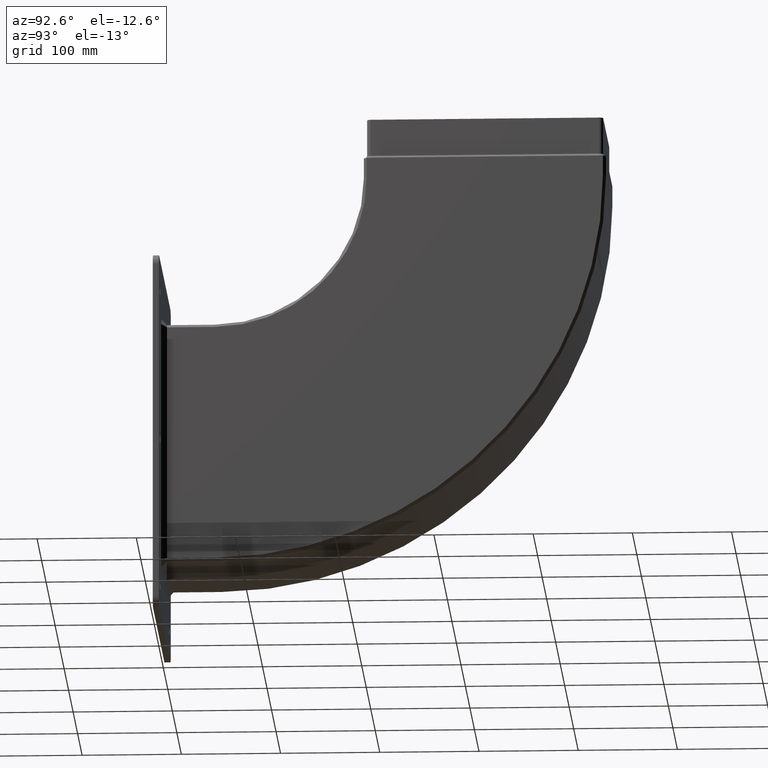
[diagram: clean part render]
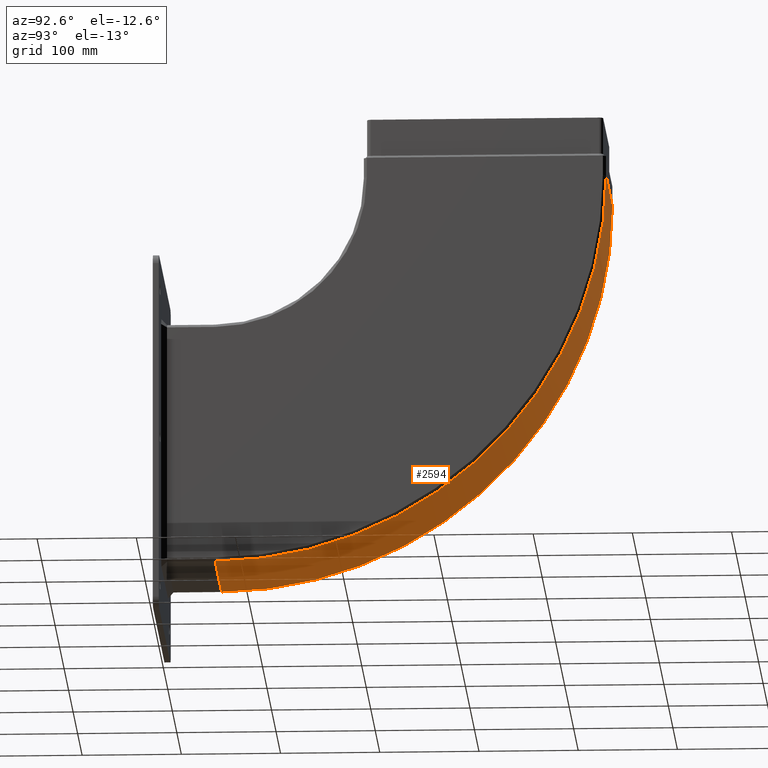
[diagram: same view with one face highlighted and labeled with its STEP entity id]
A machine part, auxiliary view. The second image highlights one B-rep face of the part: STEP entity #2594.
In plain terms, the highlighted cylindrical surface (partial cylindrical patch) has radius 394 mm, axis along (1, -0, 0).
Its self-contained STEP definition (entity closure, byte-faithful):
#91=CYLINDRICAL_SURFACE('',#2924,394.);
#232=FACE_OUTER_BOUND('',#398,.T.);
#398=EDGE_LOOP('',(#2209,#2210,#2211,#2212));
#491=CIRCLE('',#2919,394.);
#493=CIRCLE('',#2922,394.);
#727=LINE('',#4295,#1013);
#731=LINE('',#4311,#1017);
#1013=VECTOR('',#3546,10.);
#1017=VECTOR('',#3566,10.);
#1239=VERTEX_POINT('',#4283);
#1241=VERTEX_POINT('',#4289);
#1243=VERTEX_POINT('',#4299);
#1245=VERTEX_POINT('',#4305);
#1567=EDGE_CURVE('',#1241,#1239,#727,.T.);
#1569=EDGE_CURVE('',#1239,#1243,#491,.T.);
#1572=EDGE_CURVE('',#1245,#1241,#493,.T.);
#1575=EDGE_CURVE('',#1243,#1245,#731,.T.);
#2209=ORIENTED_EDGE('',*,*,#1569,.F.);
#2210=ORIENTED_EDGE('',*,*,#1567,.F.);
#2211=ORIENTED_EDGE('',*,*,#1572,.F.);
#2212=ORIENTED_EDGE('',*,*,#1575,.F.);
#2594=ADVANCED_FACE('',(#232),#91,.T.);
#2919=AXIS2_PLACEMENT_3D('',#4300,#3552,#3553);
#2922=AXIS2_PLACEMENT_3D('',#4306,#3559,#3560);
#2924=AXIS2_PLACEMENT_3D('',#4310,#3564,#3565);
#3546=DIRECTION('',(3.11641550771974E-16,1.1842378929335E-15,1.));
#3552=DIRECTION('center_axis',(0.,6.85611411698342E-16,1.));
#3553=DIRECTION('ref_axis',(-5.41022387634594E-16,1.,-6.76277984543243E-16));
#3559=DIRECTION('center_axis',(0.,-6.85611411698342E-16,-1.));
#3560=DIRECTION('ref_axis',(-1.,-4.2830939021072E-16,0.));
#3564=DIRECTION('center_axis',(0.,-6.85611411698342E-16,-1.));
#3565=DIRECTION('ref_axis',(-1.,0.,0.));
#3566=DIRECTION('',(0.,-6.85611411698342E-16,-1.));
#4283=CARTESIAN_POINT('',(394.,454.,71.2499999999993));
#4289=CARTESIAN_POINT('',(394.,454.,-71.2500000000007));
#4295=CARTESIAN_POINT('',(394.,454.,-71.2500000000007));
#4299=CARTESIAN_POINT('',(0.,60.,71.25));
#4300=CARTESIAN_POINT('Origin',(394.,60.0000000000002,71.2499999999996));
#4305=CARTESIAN_POINT('',(0.,59.9999999999999,-71.25));
#4306=CARTESIAN_POINT('Origin',(394.,60.0000000000002,-71.25));
#4310=CARTESIAN_POINT('Origin',(394.,60.0000000000002,8.88178419700125E-15));
#4311=CARTESIAN_POINT('',(0.,60.,71.25));